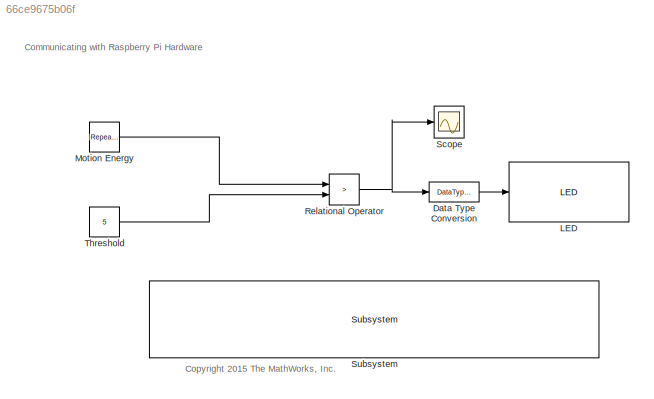
MODEL slx_66ce9675b06f
KIND model
CONFIG AbsTol = auto
CONFIG EnableMultiTasking = on
CONFIG FixedStep = auto
CONFIG MaxStep = auto
CONFIG MinStep = auto
CONFIG RelTol = 1e-3
CONFIG SampleTimeConstraint = Unconstrained
CONFIG Solver = ode45
CONFIG SolverName = ode45
CONFIG StartTime = 0.0
CONFIG StopTime = 10.0
BLOCK [DataTypeConversion] Data Type Conversion
  RndMeth = Floor
  SaturateOnIntegerOverflow = off
BLOCK [Reference] LED  REF=embdlinuxlib/LED
  Ports = [1]
  SourceBlock = embdlinuxlib/LED
  SourceProductBaseCode = RASPPI
  SourceProductName = Simulink Support Package for Raspberry Pi Hardware
  SourceType = LED Write
BLOCK [Reference] Motion Energy  REF=simulink/Sources/Repeating
Sequence
Stair
  Ports = [0, 1]
  SourceBlock = simulink/Sources/Repeating\nSequence\nStair
  SourceProductBaseCode = SL
  SourceProductName = Simulink
  SourceType = Repeating Sequence Stair
BLOCK [RelationalOperator] Relational Operator
  InputSameDT = off
  Operator = >
  OutDataTypeStr = fixdt(1,16)
  Ports = [2, 1]
BLOCK [Scope] Scope
  Floating = off
  NumInputPorts = 1
  Ports = [1]
  ScopeSpecificationString = Simulink.scopes.TimeScopeBlockCfg('CurrentConfiguration', extmgr.ConfigurationSet(extmgr.Configuration('Core','General UI',true),extmgr.Configuration('Core','Source UI',true),extmgr.Configuration('Sources','WiredSimulink',true,'DataLoggingVariableName','ScopeData1','DataLoggingSaveFormat','StructureWithTime','DataLoggingLimitDataPoints',true,'DataLoggingDecimation','1'),extmgr.Configuration('Visua...<+1655ch>
BLOCK [Reference] Subsystem  REF=realtime_examples_misc/Subsystem
  Ports = []
  SourceBlock = realtime_examples_misc/Subsystem
BLOCK [Constant] Threshold 
  OutDataTypeStr = uint8
  SampleTime = 0.1
  Value = 5
ANNOTATION (root): Communicating with Raspberry Pi Hardware
ANNOTATION (root): <copyright redacted>
LINE Data Type Conversion:1 -> LED:1
LINE Motion Energy:1 -> Relational Operator:1
NET Relational Operator:1 -> Data Type Conversion:1, Scope:1
LINE Threshold :1 -> Relational Operator:2
note: NET lines group one-source signal fan-out (src -> all destinations, sorted); 1:1 wires keep LINE
